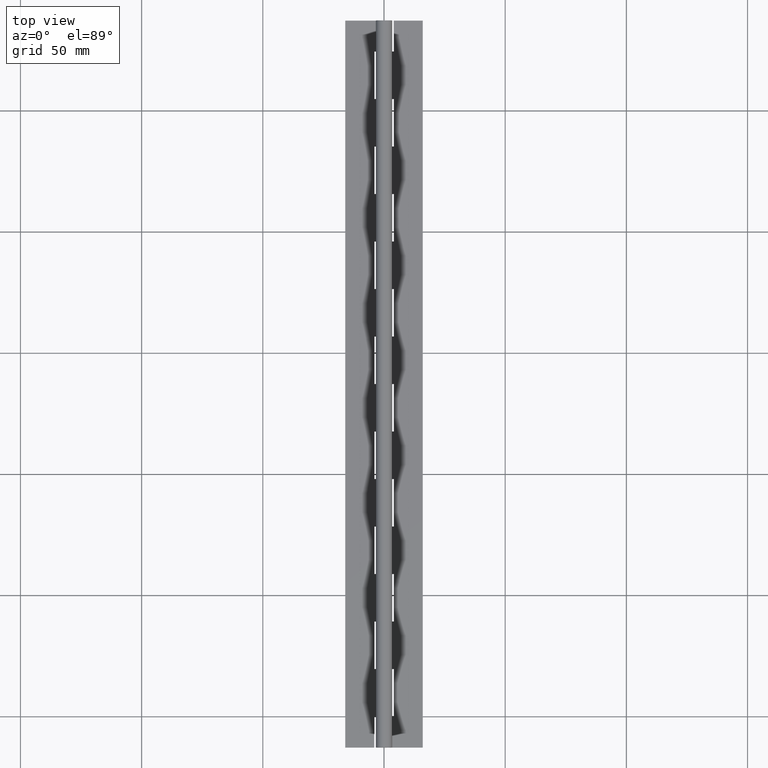
[diagram: clean part render]
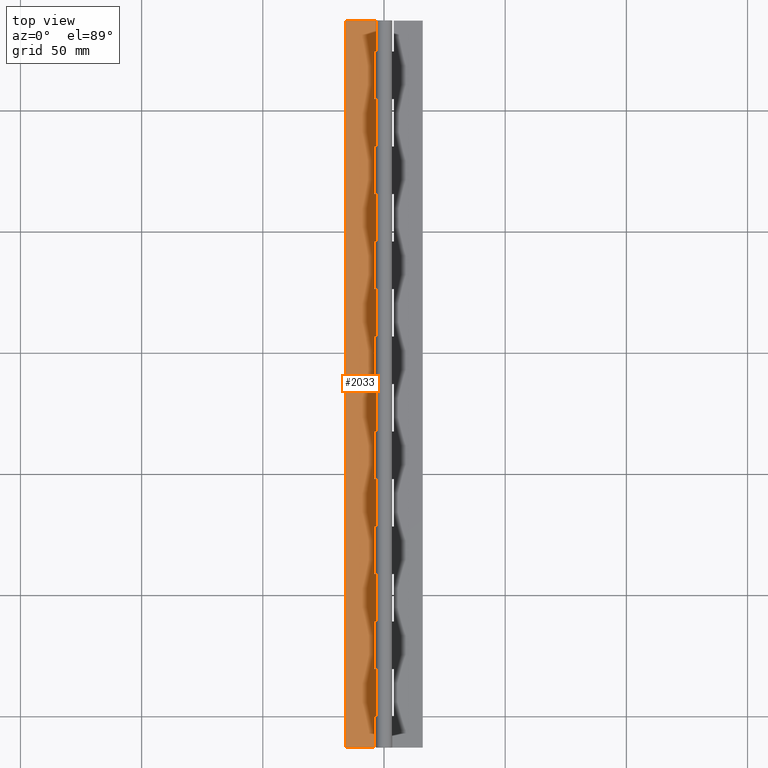
[diagram: same view with one face highlighted and labeled with its STEP entity id]
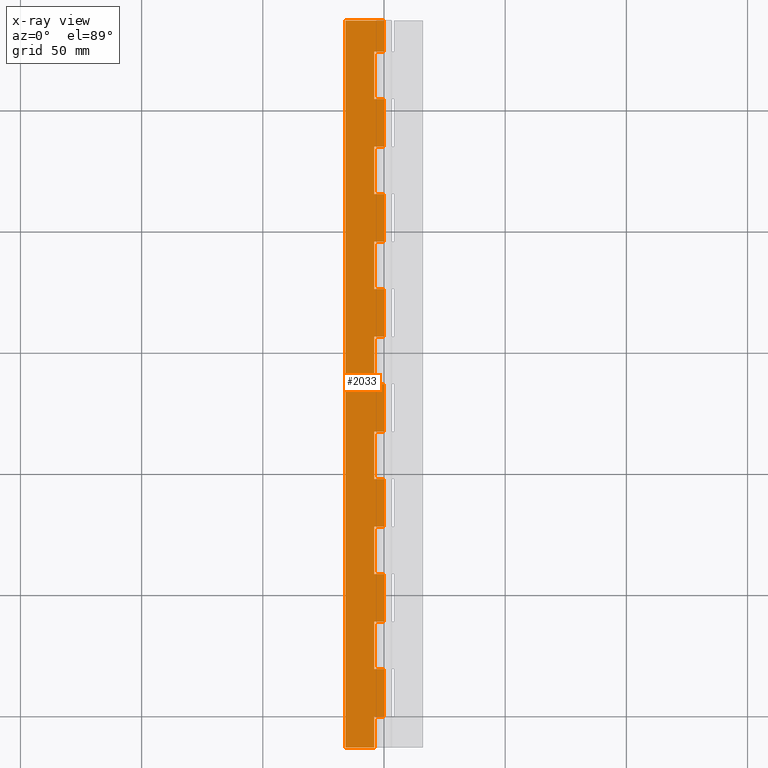
[diagram: x-ray of the same camera — body ghosted, the highlighted face saturated]
A machine part, top view. The second image highlights one B-rep face of the part: STEP entity #2033.
The next image is the same camera in x-ray: the body ghosted, the highlighted face saturated — about 0% of this face is hidden behind the body in this view.
In plain terms, the highlighted planar face has unit normal (-0, 0, -1).
Its self-contained STEP definition (entity closure, byte-faithful):
#4 = CARTESIAN_POINT ( 'NONE',  ( 2.143132568272414800E-016, 274.3999999999999800, -1.750000546904256100 ) ) ;
#9 = ORIENTED_EDGE ( 'NONE', *, *, #2759, .F. ) ;
#19 = CARTESIAN_POINT ( 'NONE',  ( -15.99999982459446300, -12.80000000000000100, -1.750000000000000400 ) ) ;
#28 = ORIENTED_EDGE ( 'NONE', *, *, #2709, .T. ) ;
#35 = EDGE_CURVE ( 'NONE', #804, #1448, #2576, .T. ) ;
#40 = CARTESIAN_POINT ( 'NONE',  ( -3.999999824594482800, 274.3999999999999800, -1.750000000000002000 ) ) ;
#70 = EDGE_CURVE ( 'NONE', #423, #1535, #2309, .T. ) ;
#92 = EDGE_CURVE ( 'NONE', #2322, #2467, #3642, .T. ) ;
#99 = EDGE_CURVE ( 'NONE', #3531, #1576, #2213, .T. ) ;
#122 = VECTOR ( 'NONE', #3093, 1000.000000000000000 ) ;
#123 = DIRECTION ( 'NONE',  ( 1.000000000000000000, 0.0000000000000000000, -1.219727457417877100E-016 ) ) ;
#139 = VERTEX_POINT ( 'NONE', #299 ) ;
#176 = LINE ( 'NONE', #1282, #1611 ) ;
#189 = DIRECTION ( 'NONE',  ( -1.327594496921025700E-016, 1.000000000000000000, 1.619303460211448400E-032 ) ) ;
#193 = VERTEX_POINT ( 'NONE', #1723 ) ;
#199 = CARTESIAN_POINT ( 'NONE',  ( 2.143125705451388300E-016, 274.4000000000000300, -1.750000000000002400 ) ) ;
#201 = DIRECTION ( 'NONE',  ( -1.000000000000000000, 0.0000000000000000000, 1.219727457417877100E-016 ) ) ;
#210 = CARTESIAN_POINT ( 'NONE',  ( -15.99999982459446300, 287.1999999999999300, -1.750000000000000400 ) ) ;
#211 = DIRECTION ( 'NONE',  ( -1.000000000000000000, 0.0000000000000000000, 1.219727457417877100E-016 ) ) ;
#237 = ORIENTED_EDGE ( 'NONE', *, *, #2904, .T. ) ;
#271 = EDGE_CURVE ( 'NONE', #1544, #1333, #3303, .T. ) ;
#277 = LINE ( 'NONE', #1280, #1704 ) ;
#283 = ORIENTED_EDGE ( 'NONE', *, *, #2450, .T. ) ;
#293 = EDGE_CURVE ( 'NONE', #1318, #3638, #3383, .T. ) ;
#299 = CARTESIAN_POINT ( 'NONE',  ( 2.143125705451388300E-016, 117.6000000000000100, -1.750000000000002400 ) ) ;
#307 = LINE ( 'NONE', #3064, #2481 ) ;
#314 = ORIENTED_EDGE ( 'NONE', *, *, #745, .T. ) ;
#316 = VECTOR ( 'NONE', #201, 1000.000000000000000 ) ;
#319 = LINE ( 'NONE', #1172, #3265 ) ;
#353 = EDGE_CURVE ( 'NONE', #845, #1829, #1423, .T. ) ;
#366 = CARTESIAN_POINT ( 'NONE',  ( -3.999999824594459200, 137.2000000000000200, -1.750000000000002200 ) ) ;
#370 = DIRECTION ( 'NONE',  ( -1.327594496921025700E-016, 1.000000000000000000, 1.619303460211448400E-032 ) ) ;
#389 = DIRECTION ( 'NONE',  ( -0.9999999999999994400, -0.0000000000000000000, 3.418151635014737200E-008 ) ) ;
#415 = VECTOR ( 'NONE', #2768, 1000.000000000000000 ) ;
#423 = VERTEX_POINT ( 'NONE', #1022 ) ;
#501 = LINE ( 'NONE', #3367, #415 ) ;
#504 = VERTEX_POINT ( 'NONE', #558 ) ;
#522 = LINE ( 'NONE', #826, #3461 ) ;
#528 = DIRECTION ( 'NONE',  ( 1.000000000000000000, 0.0000000000000000000, -1.219727457417877100E-016 ) ) ;
#548 = VERTEX_POINT ( 'NONE', #199 ) ;
#558 = CARTESIAN_POINT ( 'NONE',  ( -3.999999824594459200, 98.00000000000001400, -1.750000000000002200 ) ) ;
#568 = LINE ( 'NONE', #811, #2347 ) ;
#579 = VECTOR ( 'NONE', #3478, 1000.000000000000000 ) ;
#586 = CARTESIAN_POINT ( 'NONE',  ( 0.0000000000000000000, 19.60000000000000500, -1.750000546904256100 ) ) ;
#596 = DIRECTION ( 'NONE',  ( 1.000000000000000000, 0.0000000000000000000, -1.219727457417877100E-016 ) ) ;
#612 = CARTESIAN_POINT ( 'NONE',  ( 2.143125705451388300E-016, 254.8000000000000400, -1.750000000000002400 ) ) ;
#629 = DIRECTION ( 'NONE',  ( -0.0000000000000000000, -1.000000000000000000, -0.0000000000000000000 ) ) ;
#659 = CARTESIAN_POINT ( 'NONE',  ( -3.999999824594459200, 19.60000000000000100, -1.750000000000002200 ) ) ;
#674 = VERTEX_POINT ( 'NONE', #1275 ) ;
#700 = VERTEX_POINT ( 'NONE', #3004 ) ;
#701 = CARTESIAN_POINT ( 'NONE',  ( -3.999999824594519200, 274.3999999999999800, -1.750000000000002000 ) ) ;
#720 = VECTOR ( 'NONE', #389, 1000.000000000000100 ) ;
#721 = EDGE_CURVE ( 'NONE', #3531, #423, #176, .T. ) ;
#737 = CARTESIAN_POINT ( 'NONE',  ( 2.143132568272414800E-016, 0.0000000000000000000, -1.750000546904256100 ) ) ;
#745 = EDGE_CURVE ( 'NONE', #3490, #2467, #1522, .T. ) ;
#760 = VECTOR ( 'NONE', #2177, 1000.000000000000000 ) ;
#765 = VECTOR ( 'NONE', #2388, 1000.000000000000000 ) ;
#804 = VERTEX_POINT ( 'NONE', #1958 ) ;
#808 = ORIENTED_EDGE ( 'NONE', *, *, #930, .T. ) ;
#811 = CARTESIAN_POINT ( 'NONE',  ( 2.143132568272414800E-016, 274.3999999999999800, -1.750000546904256100 ) ) ;
#820 = ORIENTED_EDGE ( 'NONE', *, *, #293, .T. ) ;
#826 = CARTESIAN_POINT ( 'NONE',  ( 0.0000000000000000000, 39.20000000000001000, -1.750000000000002400 ) ) ;
#829 = DIRECTION ( 'NONE',  ( -0.0000000000000000000, -1.000000000000000000, -0.0000000000000000000 ) ) ;
#830 = LINE ( 'NONE', #1793, #1594 ) ;
#841 = LINE ( 'NONE', #210, #2164 ) ;
#845 = VERTEX_POINT ( 'NONE', #586 ) ;
#872 = ORIENTED_EDGE ( 'NONE', *, *, #1263, .T. ) ;
#881 = VERTEX_POINT ( 'NONE', #3127 ) ;
#902 = ORIENTED_EDGE ( 'NONE', *, *, #3347, .T. ) ;
#910 = CARTESIAN_POINT ( 'NONE',  ( 0.0000000000000000000, 254.8000000000000400, -1.750000000000002400 ) ) ;
#918 = LINE ( 'NONE', #2682, #3086 ) ;
#930 = EDGE_CURVE ( 'NONE', #1317, #1544, #307, .T. ) ;
#953 = VECTOR ( 'NONE', #2935, 1000.000000000000000 ) ;
#966 = ORIENTED_EDGE ( 'NONE', *, *, #2055, .T. ) ;
#978 = ORIENTED_EDGE ( 'NONE', *, *, #3590, .T. ) ;
#1022 = CARTESIAN_POINT ( 'NONE',  ( -3.999999824594459200, 176.4000000000000300, -1.750000000000002200 ) ) ;
#1026 = DIRECTION ( 'NONE',  ( -1.219727457417877100E-016, 0.0000000000000000000, -1.000000000000000000 ) ) ;
#1031 = EDGE_LOOP ( 'NONE', ( #2413, #3252, #3421, #1223, #314, #1299, #966, #1857, #2184, #978, #2042, #2863, #2470, #820, #902, #3597, #1131, #1656, #2627, #872, #3197, #2107, #28, #2431, #3449, #1638, #2532, #2980, #2252, #283, #808, #1794, #9, #237 ) ) ;
#1039 = VECTOR ( 'NONE', #1790, 1000.000000000000000 ) ;
#1044 = LINE ( 'NONE', #1843, #1622 ) ;
#1070 = VERTEX_POINT ( 'NONE', #3053 ) ;
#1091 = FACE_OUTER_BOUND ( 'NONE', #1031, .T. ) ;
#1131 = ORIENTED_EDGE ( 'NONE', *, *, #1823, .F. ) ;
#1172 = CARTESIAN_POINT ( 'NONE',  ( 0.0000000000000000000, 78.40000000000002000, -1.750000000000002400 ) ) ;
#1212 = VERTEX_POINT ( 'NONE', #2978 ) ;
#1223 = ORIENTED_EDGE ( 'NONE', *, *, #1800, .F. ) ;
#1226 = VECTOR ( 'NONE', #3257, 1000.000000000000000 ) ;
#1229 = EDGE_CURVE ( 'NONE', #700, #1829, #2702, .T. ) ;
#1244 = CARTESIAN_POINT ( 'NONE',  ( -3.999999824594459200, 254.8000000000000400, -1.750000000000002200 ) ) ;
#1263 = EDGE_CURVE ( 'NONE', #1212, #139, #1865, .T. ) ;
#1271 = CARTESIAN_POINT ( 'NONE',  ( -3.999999824594461900, 274.3999999999999800, -1.750000000000002000 ) ) ;
#1275 = CARTESIAN_POINT ( 'NONE',  ( -3.999999824594461900, 274.4000000000000300, -1.750000000000002200 ) ) ;
#1280 = CARTESIAN_POINT ( 'NONE',  ( -3.999999824594477400, 274.3999999999999800, -1.750000000000002000 ) ) ;
#1282 = CARTESIAN_POINT ( 'NONE',  ( 0.0000000000000000000, 176.4000000000000300, -1.750000000000002400 ) ) ;
#1283 = VECTOR ( 'NONE', #1888, 1000.000000000000000 ) ;
#1299 = ORIENTED_EDGE ( 'NONE', *, *, #92, .F. ) ;
#1304 = VECTOR ( 'NONE', #2007, 1000.000000000000000 ) ;
#1317 = VERTEX_POINT ( 'NONE', #1734 ) ;
#1318 = VERTEX_POINT ( 'NONE', #3472 ) ;
#1333 = VERTEX_POINT ( 'NONE', #2038 ) ;
#1345 = DIRECTION ( 'NONE',  ( -1.327594496921025700E-016, 1.000000000000000000, 1.619303460211448400E-032 ) ) ;
#1373 = DIRECTION ( 'NONE',  ( -1.000000000000000000, 0.0000000000000000000, 1.219727457417877100E-016 ) ) ;
#1378 = VECTOR ( 'NONE', #629, 1000.000000000000000 ) ;
#1380 = VERTEX_POINT ( 'NONE', #2067 ) ;
#1382 = CARTESIAN_POINT ( 'NONE',  ( 0.0000000000000000000, 156.8000000000000100, -1.750000000000002400 ) ) ;
#1391 = VECTOR ( 'NONE', #2081, 1000.000000000000000 ) ;
#1411 = CARTESIAN_POINT ( 'NONE',  ( -3.999999824594465500, -12.80000000000000100, -1.750000410178196500 ) ) ;
#1423 = LINE ( 'NONE', #2667, #765 ) ;
#1448 = VERTEX_POINT ( 'NONE', #366 ) ;
#1453 = DIRECTION ( 'NONE',  ( -1.000000000000000000, 0.0000000000000000000, 1.219727457417877100E-016 ) ) ;
#1522 = LINE ( 'NONE', #2685, #760 ) ;
#1535 = VERTEX_POINT ( 'NONE', #3416 ) ;
#1540 = VERTEX_POINT ( 'NONE', #2243 ) ;
#1544 = VERTEX_POINT ( 'NONE', #2505 ) ;
#1556 = CARTESIAN_POINT ( 'NONE',  ( 0.0000000000000000000, 98.00000000000002800, -1.750000000000002400 ) ) ;
#1560 = EDGE_CURVE ( 'NONE', #1380, #1576, #2294, .T. ) ;
#1564 = DIRECTION ( 'NONE',  ( -1.327594496921025700E-016, 1.000000000000000000, 1.619303460211448400E-032 ) ) ;
#1565 = DIRECTION ( 'NONE',  ( -1.327594496921025700E-016, 1.000000000000000000, 1.619303460211448400E-032 ) ) ;
#1568 = DIRECTION ( 'NONE',  ( 0.9999999999999994400, 0.0000000000000000000, -3.418151635014737200E-008 ) ) ;
#1576 = VERTEX_POINT ( 'NONE', #3366 ) ;
#1578 = DIRECTION ( 'NONE',  ( -1.327594496921025700E-016, 1.000000000000000000, 1.619303460211448400E-032 ) ) ;
#1594 = VECTOR ( 'NONE', #370, 1000.000000000000000 ) ;
#1611 = VECTOR ( 'NONE', #211, 1000.000000000000000 ) ;
#1622 = VECTOR ( 'NONE', #2705, 1000.000000000000000 ) ;
#1626 = EDGE_CURVE ( 'NONE', #2645, #1540, #522, .T. ) ;
#1638 = ORIENTED_EDGE ( 'NONE', *, *, #721, .T. ) ;
#1650 = CARTESIAN_POINT ( 'NONE',  ( 2.143125705451388300E-016, 176.4000000000000300, -1.750000000000002400 ) ) ;
#1656 = ORIENTED_EDGE ( 'NONE', *, *, #3447, .T. ) ;
#1658 = VECTOR ( 'NONE', #189, 1000.000000000000000 ) ;
#1680 = EDGE_CURVE ( 'NONE', #2517, #193, #2608, .T. ) ;
#1704 = VECTOR ( 'NONE', #1578, 1000.000000000000000 ) ;
#1723 = CARTESIAN_POINT ( 'NONE',  ( 2.143125705451388300E-016, 196.0000000000000300, -1.750000000000002400 ) ) ;
#1734 = CARTESIAN_POINT ( 'NONE',  ( -3.999999824594459200, 215.6000000000000500, -1.750000000000002200 ) ) ;
#1756 = LINE ( 'NONE', #701, #2414 ) ;
#1790 = DIRECTION ( 'NONE',  ( 1.000000000000000000, 0.0000000000000000000, -1.219727457417877100E-016 ) ) ;
#1793 = CARTESIAN_POINT ( 'NONE',  ( -3.999999824594488100, 274.3999999999999800, -1.750000000000002000 ) ) ;
#1794 = ORIENTED_EDGE ( 'NONE', *, *, #271, .T. ) ;
#1800 = EDGE_CURVE ( 'NONE', #3490, #881, #841, .T. ) ;
#1805 = CARTESIAN_POINT ( 'NONE',  ( 2.143132568272414800E-016, 274.3999999999999800, -1.750000546904256100 ) ) ;
#1823 = EDGE_CURVE ( 'NONE', #1070, #3085, #568, .T. ) ;
#1829 = VERTEX_POINT ( 'NONE', #737 ) ;
#1843 = CARTESIAN_POINT ( 'NONE',  ( 2.143132568272414800E-016, 274.3999999999999800, -1.750000546904256100 ) ) ;
#1857 = ORIENTED_EDGE ( 'NONE', *, *, #1229, .T. ) ;
#1861 = DIRECTION ( 'NONE',  ( -1.000000000000000000, 0.0000000000000000000, 1.219727457417877100E-016 ) ) ;
#1865 = LINE ( 'NONE', #3584, #2520 ) ;
#1873 = CARTESIAN_POINT ( 'NONE',  ( 0.0000000000000000000, 274.3999999999999800, -1.750000000000002400 ) ) ;
#1887 = LINE ( 'NONE', #910, #2634 ) ;
#1888 = DIRECTION ( 'NONE',  ( 1.000000000000000000, 0.0000000000000000000, -1.219727457417877100E-016 ) ) ;
#1915 = CARTESIAN_POINT ( 'NONE',  ( -3.999999824594472100, 274.3999999999999800, -1.750000000000002000 ) ) ;
#1951 = CARTESIAN_POINT ( 'NONE',  ( 0.0000000000000000000, 19.60000000000000500, -1.750000000000002400 ) ) ;
#1958 = CARTESIAN_POINT ( 'NONE',  ( 2.143125705451388300E-016, 137.2000000000000200, -1.750000000000002400 ) ) ;
#1964 = LINE ( 'NONE', #1271, #3386 ) ;
#1967 = LINE ( 'NONE', #40, #3392 ) ;
#1974 = LINE ( 'NONE', #1556, #1226 ) ;
#2007 = DIRECTION ( 'NONE',  ( -0.0000000000000000000, -1.000000000000000000, -0.0000000000000000000 ) ) ;
#2013 = CARTESIAN_POINT ( 'NONE',  ( 0.0000000000000000000, 58.80000000000001800, -1.750000000000002400 ) ) ;
#2033 = ADVANCED_FACE ( 'NONE', ( #1091 ), #2715, .F. ) ;
#2038 = CARTESIAN_POINT ( 'NONE',  ( 2.143125705451388300E-016, 235.2000000000000500, -1.750000000000002400 ) ) ;
#2042 = ORIENTED_EDGE ( 'NONE', *, *, #2070, .T. ) ;
#2049 = EDGE_CURVE ( 'NONE', #674, #548, #2588, .T. ) ;
#2055 = EDGE_CURVE ( 'NONE', #2322, #700, #1756, .T. ) ;
#2067 = CARTESIAN_POINT ( 'NONE',  ( -3.999999824594461900, 156.8000000000000100, -1.750000000000002200 ) ) ;
#2070 = EDGE_CURVE ( 'NONE', #3377, #2645, #918, .T. ) ;
#2081 = DIRECTION ( 'NONE',  ( -0.0000000000000000000, -1.000000000000000000, -0.0000000000000000000 ) ) ;
#2096 = CARTESIAN_POINT ( 'NONE',  ( -3.999999824594461900, 39.20000000000000300, -1.750000000000002200 ) ) ;
#2107 = ORIENTED_EDGE ( 'NONE', *, *, #35, .T. ) ;
#2131 = DIRECTION ( 'NONE',  ( 1.000000000000000000, 0.0000000000000000000, -1.219727457417877100E-016 ) ) ;
#2152 = LINE ( 'NONE', #1805, #1391 ) ;
#2164 = VECTOR ( 'NONE', #1568, 1000.000000000000100 ) ;
#2165 = EDGE_CURVE ( 'NONE', #1318, #1540, #3570, .T. ) ;
#2177 = DIRECTION ( 'NONE',  ( -0.0000000000000000000, -1.000000000000000000, -0.0000000000000000000 ) ) ;
#2184 = ORIENTED_EDGE ( 'NONE', *, *, #353, .F. ) ;
#2213 = LINE ( 'NONE', #2901, #1378 ) ;
#2214 = DIRECTION ( 'NONE',  ( 1.000000000000000000, 0.0000000000000000000, -1.219727457417877100E-016 ) ) ;
#2216 = EDGE_CURVE ( 'NONE', #504, #1212, #1967, .T. ) ;
#2234 = DIRECTION ( 'NONE',  ( -1.327594496921025700E-016, 1.000000000000000000, 1.619303460211448400E-032 ) ) ;
#2243 = CARTESIAN_POINT ( 'NONE',  ( 2.143132568272414800E-016, 39.20000000000001000, -1.750000546904256100 ) ) ;
#2252 = ORIENTED_EDGE ( 'NONE', *, *, #1680, .F. ) ;
#2294 = LINE ( 'NONE', #1382, #122 ) ;
#2309 = LINE ( 'NONE', #1915, #1658 ) ;
#2322 = VERTEX_POINT ( 'NONE', #1411 ) ;
#2347 = VECTOR ( 'NONE', #829, 1000.000000000000000 ) ;
#2388 = DIRECTION ( 'NONE',  ( -0.0000000000000000000, -1.000000000000000000, -0.0000000000000000000 ) ) ;
#2412 = DIRECTION ( 'NONE',  ( -0.0000000000000000000, -1.000000000000000000, -0.0000000000000000000 ) ) ;
#2413 = ORIENTED_EDGE ( 'NONE', *, *, #2690, .T. ) ;
#2414 = VECTOR ( 'NONE', #2972, 1000.000000000000000 ) ;
#2416 = CARTESIAN_POINT ( 'NONE',  ( -15.99999982459446300, 287.1999999999999300, -1.750000000000000400 ) ) ;
#2423 = VERTEX_POINT ( 'NONE', #2524 ) ;
#2431 = ORIENTED_EDGE ( 'NONE', *, *, #1560, .T. ) ;
#2450 = EDGE_CURVE ( 'NONE', #2517, #1317, #501, .T. ) ;
#2454 = LINE ( 'NONE', #3553, #3122 ) ;
#2467 = VERTEX_POINT ( 'NONE', #19 ) ;
#2470 = ORIENTED_EDGE ( 'NONE', *, *, #2165, .F. ) ;
#2481 = VECTOR ( 'NONE', #1345, 1000.000000000000000 ) ;
#2502 = VECTOR ( 'NONE', #123, 1000.000000000000000 ) ;
#2505 = CARTESIAN_POINT ( 'NONE',  ( -3.999999824594461900, 235.2000000000000500, -1.750000000000002200 ) ) ;
#2508 = EDGE_CURVE ( 'NONE', #2423, #3085, #319, .T. ) ;
#2517 = VERTEX_POINT ( 'NONE', #2595 ) ;
#2520 = VECTOR ( 'NONE', #2214, 1000.000000000000000 ) ;
#2523 = VERTEX_POINT ( 'NONE', #612 ) ;
#2524 = CARTESIAN_POINT ( 'NONE',  ( -3.999999824594461900, 78.40000000000000600, -1.750000000000002200 ) ) ;
#2532 = ORIENTED_EDGE ( 'NONE', *, *, #70, .T. ) ;
#2576 = LINE ( 'NONE', #3330, #316 ) ;
#2588 = LINE ( 'NONE', #3533, #2502 ) ;
#2595 = CARTESIAN_POINT ( 'NONE',  ( 2.143125705451388300E-016, 215.6000000000000500, -1.750000000000002400 ) ) ;
#2599 = CARTESIAN_POINT ( 'NONE',  ( 0.0000000000000000000, 235.2000000000000500, -1.750000000000002400 ) ) ;
#2608 = LINE ( 'NONE', #3544, #3286 ) ;
#2627 = ORIENTED_EDGE ( 'NONE', *, *, #2216, .T. ) ;
#2634 = VECTOR ( 'NONE', #1453, 1000.000000000000000 ) ;
#2645 = VERTEX_POINT ( 'NONE', #2096 ) ;
#2667 = CARTESIAN_POINT ( 'NONE',  ( 2.143132568272414800E-016, 274.3999999999999800, -1.750000546904256100 ) ) ;
#2682 = CARTESIAN_POINT ( 'NONE',  ( -3.999999824594493000, 274.3999999999999800, -1.750000000000002000 ) ) ;
#2685 = CARTESIAN_POINT ( 'NONE',  ( -15.99999982459446300, 274.3999999999999800, -1.750000000000000400 ) ) ;
#2690 = EDGE_CURVE ( 'NONE', #3398, #674, #1964, .T. ) ;
#2702 = LINE ( 'NONE', #2938, #1283 ) ;
#2705 = DIRECTION ( 'NONE',  ( -0.0000000000000000000, -1.000000000000000000, -0.0000000000000000000 ) ) ;
#2709 = EDGE_CURVE ( 'NONE', #1448, #1380, #277, .T. ) ;
#2713 = EDGE_CURVE ( 'NONE', #1535, #193, #2454, .T. ) ;
#2715 = PLANE ( 'NONE',  #3677 ) ;
#2759 = EDGE_CURVE ( 'NONE', #2523, #1333, #1044, .T. ) ;
#2768 = DIRECTION ( 'NONE',  ( -1.000000000000000000, 0.0000000000000000000, 1.219727457417877100E-016 ) ) ;
#2863 = ORIENTED_EDGE ( 'NONE', *, *, #1626, .T. ) ;
#2901 = CARTESIAN_POINT ( 'NONE',  ( 2.143132568272414800E-016, 274.3999999999999800, -1.750000546904256100 ) ) ;
#2904 = EDGE_CURVE ( 'NONE', #2523, #3398, #1887, .T. ) ;
#2935 = DIRECTION ( 'NONE',  ( -1.000000000000000000, 0.0000000000000000000, 1.219727457417877100E-016 ) ) ;
#2938 = CARTESIAN_POINT ( 'NONE',  ( 0.0000000000000000000, 0.0000000000000000000, -1.750000000000002400 ) ) ;
#2954 = VECTOR ( 'NONE', #1373, 1000.000000000000000 ) ;
#2972 = DIRECTION ( 'NONE',  ( -2.032879073410320800E-016, 1.000000000000000000, 2.479558423448780400E-032 ) ) ;
#2978 = CARTESIAN_POINT ( 'NONE',  ( -3.999999824594461900, 117.6000000000000100, -1.750000000000002200 ) ) ;
#2980 = ORIENTED_EDGE ( 'NONE', *, *, #2713, .T. ) ;
#3004 = CARTESIAN_POINT ( 'NONE',  ( -3.999999824594463700, 0.0000000000000000000, -1.750000000000002200 ) ) ;
#3042 = LINE ( 'NONE', #1951, #2954 ) ;
#3053 = CARTESIAN_POINT ( 'NONE',  ( 2.143125705451388300E-016, 98.00000000000002800, -1.750000000000002400 ) ) ;
#3064 = CARTESIAN_POINT ( 'NONE',  ( -3.999999824594467200, 274.3999999999999800, -1.750000000000002000 ) ) ;
#3085 = VERTEX_POINT ( 'NONE', #3540 ) ;
#3086 = VECTOR ( 'NONE', #1565, 1000.000000000000000 ) ;
#3093 = DIRECTION ( 'NONE',  ( 1.000000000000000000, 0.0000000000000000000, -1.219727457417877100E-016 ) ) ;
#3122 = VECTOR ( 'NONE', #2131, 1000.000000000000000 ) ;
#3123 = LINE ( 'NONE', #3200, #579 ) ;
#3127 = CARTESIAN_POINT ( 'NONE',  ( 2.143132568272414800E-016, 287.1999999999999300, -1.750000546904256100 ) ) ;
#3197 = ORIENTED_EDGE ( 'NONE', *, *, #3384, .F. ) ;
#3200 = CARTESIAN_POINT ( 'NONE',  ( 2.143132568272414800E-016, 274.3999999999999800, -1.750000546904256100 ) ) ;
#3252 = ORIENTED_EDGE ( 'NONE', *, *, #2049, .T. ) ;
#3257 = DIRECTION ( 'NONE',  ( -1.000000000000000000, 0.0000000000000000000, 1.219727457417877100E-016 ) ) ;
#3265 = VECTOR ( 'NONE', #596, 1000.000000000000000 ) ;
#3286 = VECTOR ( 'NONE', #2412, 1000.000000000000000 ) ;
#3288 = EDGE_CURVE ( 'NONE', #881, #548, #3123, .T. ) ;
#3303 = LINE ( 'NONE', #2599, #1039 ) ;
#3330 = CARTESIAN_POINT ( 'NONE',  ( 0.0000000000000000000, 137.2000000000000200, -1.750000000000002400 ) ) ;
#3347 = EDGE_CURVE ( 'NONE', #3638, #2423, #830, .T. ) ;
#3366 = CARTESIAN_POINT ( 'NONE',  ( 2.143125705451388300E-016, 156.8000000000000100, -1.750000000000002400 ) ) ;
#3367 = CARTESIAN_POINT ( 'NONE',  ( 0.0000000000000000000, 215.6000000000000500, -1.750000000000002400 ) ) ;
#3377 = VERTEX_POINT ( 'NONE', #659 ) ;
#3383 = LINE ( 'NONE', #2013, #953 ) ;
#3384 = EDGE_CURVE ( 'NONE', #804, #139, #2152, .T. ) ;
#3386 = VECTOR ( 'NONE', #1564, 1000.000000000000000 ) ;
#3391 = CARTESIAN_POINT ( 'NONE',  ( -3.999999824594459200, 58.80000000000000400, -1.750000000000002200 ) ) ;
#3392 = VECTOR ( 'NONE', #2234, 1000.000000000000000 ) ;
#3398 = VERTEX_POINT ( 'NONE', #1244 ) ;
#3416 = CARTESIAN_POINT ( 'NONE',  ( -3.999999824594461900, 196.0000000000000300, -1.750000000000002200 ) ) ;
#3421 = ORIENTED_EDGE ( 'NONE', *, *, #3288, .F. ) ;
#3447 = EDGE_CURVE ( 'NONE', #1070, #504, #1974, .T. ) ;
#3449 = ORIENTED_EDGE ( 'NONE', *, *, #99, .F. ) ;
#3461 = VECTOR ( 'NONE', #528, 1000.000000000000000 ) ;
#3472 = CARTESIAN_POINT ( 'NONE',  ( 2.143125705451388300E-016, 58.80000000000001800, -1.750000000000002400 ) ) ;
#3478 = DIRECTION ( 'NONE',  ( -0.0000000000000000000, -1.000000000000000000, -0.0000000000000000000 ) ) ;
#3490 = VERTEX_POINT ( 'NONE', #2416 ) ;
#3512 = CARTESIAN_POINT ( 'NONE',  ( 2.143132568272414800E-016, -12.80000000000000100, -1.750000546904256100 ) ) ;
#3531 = VERTEX_POINT ( 'NONE', #1650 ) ;
#3533 = CARTESIAN_POINT ( 'NONE',  ( 0.0000000000000000000, 274.4000000000000300, -1.750000000000002400 ) ) ;
#3540 = CARTESIAN_POINT ( 'NONE',  ( 2.143125705451388300E-016, 78.40000000000002000, -1.750000000000002400 ) ) ;
#3544 = CARTESIAN_POINT ( 'NONE',  ( 2.143132568272414800E-016, 274.3999999999999800, -1.750000546904256100 ) ) ;
#3553 = CARTESIAN_POINT ( 'NONE',  ( 0.0000000000000000000, 196.0000000000000300, -1.750000000000002400 ) ) ;
#3570 = LINE ( 'NONE', #4, #1304 ) ;
#3584 = CARTESIAN_POINT ( 'NONE',  ( 0.0000000000000000000, 117.6000000000000100, -1.750000000000002400 ) ) ;
#3590 = EDGE_CURVE ( 'NONE', #845, #3377, #3042, .T. ) ;
#3597 = ORIENTED_EDGE ( 'NONE', *, *, #2508, .T. ) ;
#3638 = VERTEX_POINT ( 'NONE', #3391 ) ;
#3642 = LINE ( 'NONE', #3512, #720 ) ;
#3677 = AXIS2_PLACEMENT_3D ( 'NONE', #1873, #1026, #1861 ) ;